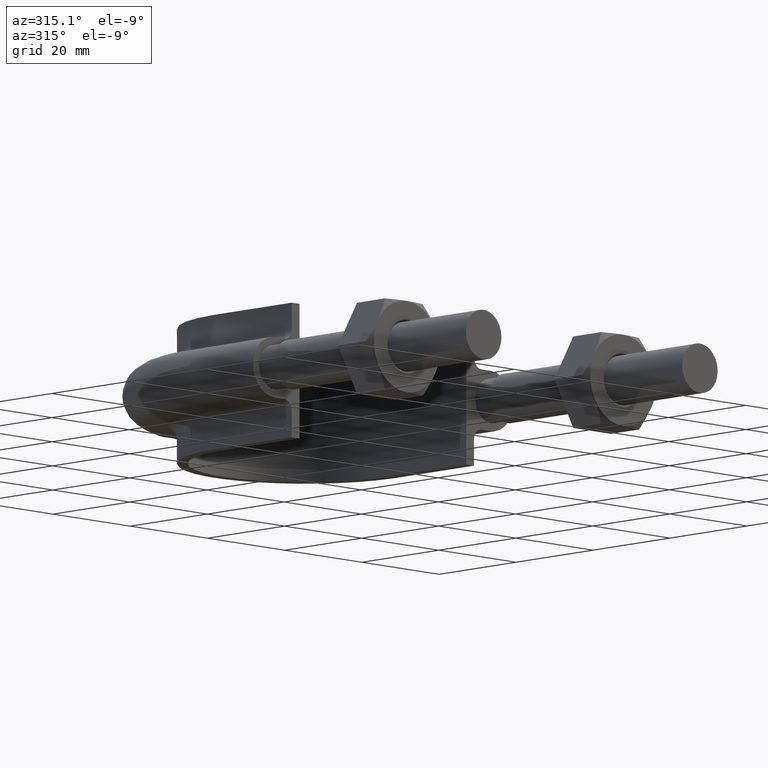
[diagram: clean part render]
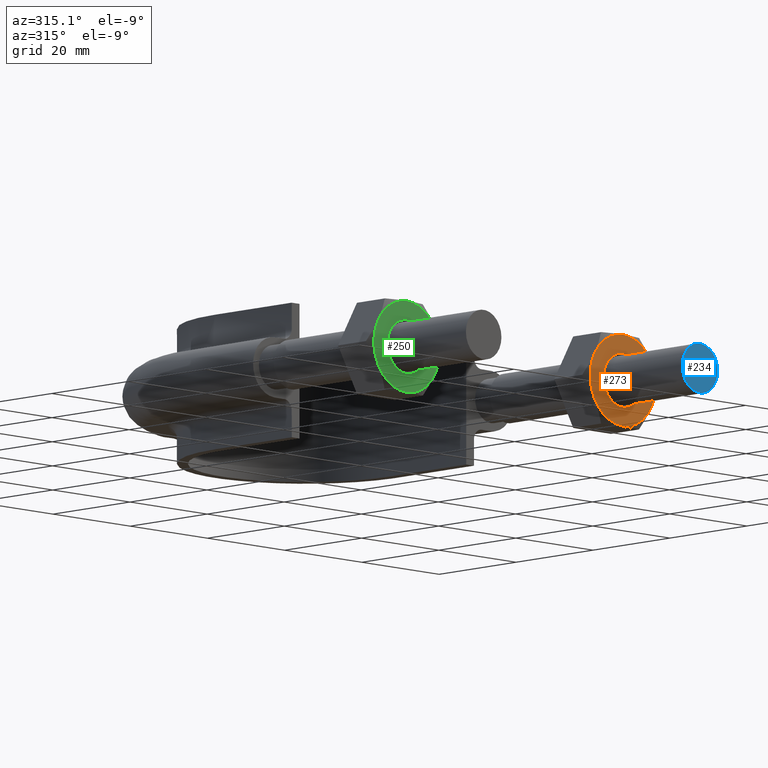
[diagram: same view with three faces highlighted in distinct colors, each labeled with its STEP entity id]
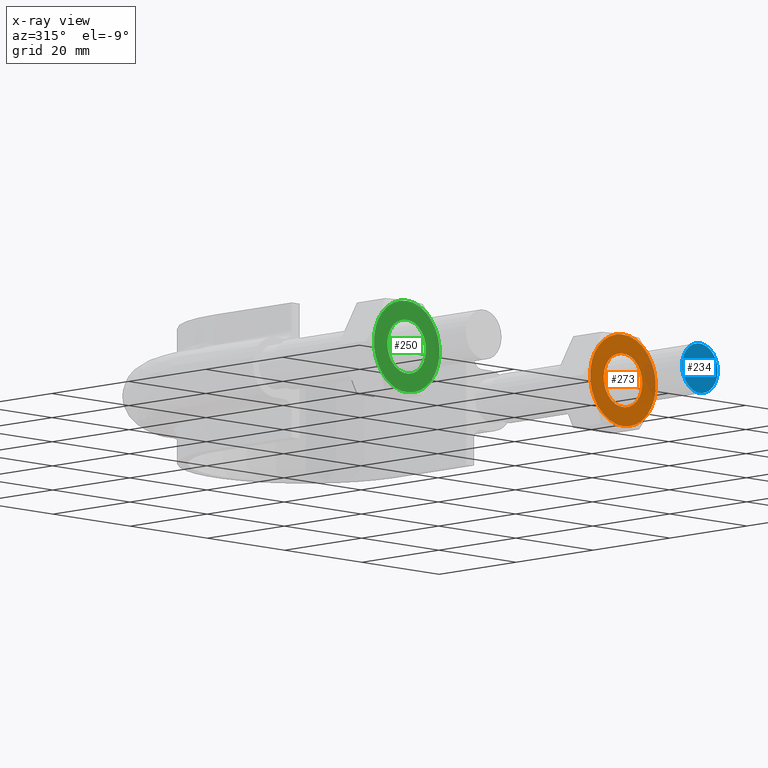
[diagram: x-ray of the same camera — body ghosted, the three highlighted faces saturated]
A machine part, auxiliary view with three faces highlighted in distinct colors.
The next image is the same camera in x-ray (body ghosted, the three faces saturated) — at least one of them is partly hidden behind the body in this view.
Their STEP definitions:

[orange] entity #273 — the highlighted planar face has unit normal (0, 1, 0).
#273 = ADVANCED_FACE( '', ( #419, #420 ), #421, .F. );
#419 = FACE_OUTER_BOUND( '', #1416, .T. );
#420 = FACE_BOUND( '', #1417, .T. );
#421 = PLANE( '', #1418 );
#1416 = EDGE_LOOP( '', ( #1837, #1838, #1839, #1840, #1841, #1842 ) );
#1417 = EDGE_LOOP( '', ( #1843 ) );
#1418 = AXIS2_PLACEMENT_3D( '', #1844, #1845, #1846 );
#1837 = ORIENTED_EDGE( '', *, *, #2107, .F. );
#1838 = ORIENTED_EDGE( '', *, *, #2108, .F. );
#1839 = ORIENTED_EDGE( '', *, *, #2109, .F. );
#1840 = ORIENTED_EDGE( '', *, *, #2110, .F. );
#1841 = ORIENTED_EDGE( '', *, *, #2105, .F. );
#1842 = ORIENTED_EDGE( '', *, *, #2111, .F. );
#1843 = ORIENTED_EDGE( '', *, *, #2112, .T. );
#1844 = CARTESIAN_POINT( '', ( 28.0000000000000, 20.0000000000000, 6.22440467223928E-016 ) );
#1845 = DIRECTION( '', ( 2.44921270764475E-016, 1.00000000000000, 6.12303176911189E-017 ) );
#1846 = DIRECTION( '', ( -0.866025403784439, 1.81492883563643E-016, 0.500000000000000 ) );
#2105 = EDGE_CURVE( '', #2322, #2324, #2325, .T. );
#2107 = EDGE_CURVE( '', #2327, #2328, #2329, .T. );
#2108 = EDGE_CURVE( '', #2330, #2327, #2331, .T. );
#2109 = EDGE_CURVE( '', #2332, #2330, #2333, .T. );
#2110 = EDGE_CURVE( '', #2324, #2332, #2334, .T. );
#2111 = EDGE_CURVE( '', #2328, #2322, #2335, .T. );
#2112 = EDGE_CURVE( '', #2336, #2336, #2337, .T. );
#2322 = VERTEX_POINT( '', #2901 );
#2324 = VERTEX_POINT( '', #2908 );
#2325 = CIRCLE( '', #2909, 8.50000000000000 );
#2327 = VERTEX_POINT( '', #2918 );
#2328 = VERTEX_POINT( '', #2919 );
#2329 = CIRCLE( '', #2920, 8.50000000000000 );
#2330 = VERTEX_POINT( '', #2921 );
#2331 = CIRCLE( '', #2922, 8.50000000000000 );
#2332 = VERTEX_POINT( '', #2923 );
#2333 = CIRCLE( '', #2924, 8.50000000000000 );
#2334 = CIRCLE( '', #2925, 8.50000000000000 );
#2335 = CIRCLE( '', #2926, 8.50000000000000 );
#2336 = VERTEX_POINT( '', #2927 );
#2337 = CIRCLE( '', #2928, 5.00000000000000 );
#2901 = CARTESIAN_POINT( '', ( 35.3612159321677, 20.0000000000000, -4.25000000000000 ) );
#2908 = CARTESIAN_POINT( '', ( 28.0000000000000, 20.0000000000000, -8.50000000000000 ) );
#2909 = AXIS2_PLACEMENT_3D( '', #3223, #3224, #3225 );
#2918 = CARTESIAN_POINT( '', ( 28.0000000000000, 20.0000000000000, 8.50000000000000 ) );
#2919 = CARTESIAN_POINT( '', ( 35.3612159321677, 20.0000000000000, 4.25000000000000 ) );
#2920 = AXIS2_PLACEMENT_3D( '', #3226, #3227, #3228 );
#2921 = CARTESIAN_POINT( '', ( 20.6387840678323, 20.0000000000000, 4.25000000000000 ) );
#2922 = AXIS2_PLACEMENT_3D( '', #3229, #3230, #3231 );
#2923 = CARTESIAN_POINT( '', ( 20.6387840678323, 20.0000000000000, -4.25000000000000 ) );
#2924 = AXIS2_PLACEMENT_3D( '', #3232, #3233, #3234 );
#2925 = AXIS2_PLACEMENT_3D( '', #3235, #3236, #3237 );
#2926 = AXIS2_PLACEMENT_3D( '', #3238, #3239, #3240 );
#2927 = CARTESIAN_POINT( '', ( 23.6698729810778, 20.0000000000000, 2.50000000000000 ) );
#2928 = AXIS2_PLACEMENT_3D( '', #3241, #3242, #3243 );
#3223 = CARTESIAN_POINT( '', ( 28.0000000000000, 20.0000000000000, 6.22440467223928E-016 ) );
#3224 = DIRECTION( '', ( 2.44921270764476E-016, 1.00000000000000, 6.12303176911189E-017 ) );
#3225 = DIRECTION( '', ( -0.866025403784439, 1.81492883563643E-016, 0.500000000000000 ) );
#3226 = CARTESIAN_POINT( '', ( 28.0000000000000, 20.0000000000000, 6.22440467223928E-016 ) );
#3227 = DIRECTION( '', ( 2.44921270764476E-016, 1.00000000000000, 6.12303176911189E-017 ) );
#3228 = DIRECTION( '', ( -0.866025403784439, 1.81492883563643E-016, 0.500000000000000 ) );
#3229 = CARTESIAN_POINT( '', ( 28.0000000000000, 20.0000000000000, 6.22440467223928E-016 ) );
#3230 = DIRECTION( '', ( 2.44921270764476E-016, 1.00000000000000, 6.12303176911189E-017 ) );
#3231 = DIRECTION( '', ( -0.866025403784439, 1.81492883563643E-016, 0.500000000000000 ) );
#3232 = CARTESIAN_POINT( '', ( 28.0000000000000, 20.0000000000000, 6.22440467223928E-016 ) );
#3233 = DIRECTION( '', ( 2.44921270764476E-016, 1.00000000000000, 6.12303176911189E-017 ) );
#3234 = DIRECTION( '', ( -0.866025403784439, 1.81492883563643E-016, 0.500000000000000 ) );
#3235 = CARTESIAN_POINT( '', ( 28.0000000000000, 20.0000000000000, 6.22440467223928E-016 ) );
#3236 = DIRECTION( '', ( 2.44921270764476E-016, 1.00000000000000, 6.12303176911189E-017 ) );
#3237 = DIRECTION( '', ( -0.866025403784439, 1.81492883563643E-016, 0.500000000000000 ) );
#3238 = CARTESIAN_POINT( '', ( 28.0000000000000, 20.0000000000000, 6.22440467223928E-016 ) );
#3239 = DIRECTION( '', ( 2.44921270764476E-016, 1.00000000000000, 6.12303176911189E-017 ) );
#3240 = DIRECTION( '', ( -0.866025403784439, 1.81492883563643E-016, 0.500000000000000 ) );
#3241 = CARTESIAN_POINT( '', ( 28.0000000000000, 20.0000000000000, 6.22440467223928E-016 ) );
#3242 = DIRECTION( '', ( 2.44921270764475E-016, 1.00000000000000, 6.12303176911189E-017 ) );
#3243 = DIRECTION( '', ( -0.866025403784439, 1.81492883563643E-016, 0.500000000000000 ) );

[blue] entity #234 — the highlighted planar face has unit normal (-0, -1, -0).
#234 = ADVANCED_FACE( '', ( #334 ), #335, .T. );
#334 = FACE_OUTER_BOUND( '', #1331, .T. );
#335 = PLANE( '', #1332 );
#1331 = EDGE_LOOP( '', ( #1584 ) );
#1332 = AXIS2_PLACEMENT_3D( '', #1585, #1586, #1587 );
#1584 = ORIENTED_EDGE( '', *, *, #2048, .T. );
#1585 = CARTESIAN_POINT( '', ( 28.0000000000000, -6.85779558140531E-015, -1.83690953073359E-017 ) );
#1586 = DIRECTION( '', ( -2.44921270764475E-016, -1.00000000000000, -6.12303176911188E-017 ) );
#1587 = DIRECTION( '', ( 1.00000000000000, -2.44921270764475E-016, -7.49830360911068E-033 ) );
#2048 = EDGE_CURVE( '', #2227, #2227, #2228, .T. );
#2227 = VERTEX_POINT( '', #2720 );
#2228 = CIRCLE( '', #2721, 4.60000000000000 );
#2720 = CARTESIAN_POINT( '', ( 32.6000000000000, -7.98443342692190E-015, -1.83690953073359E-017 ) );
#2721 = AXIS2_PLACEMENT_3D( '', #3127, #3128, #3129 );
#3127 = CARTESIAN_POINT( '', ( 28.0000000000000, -6.85779558140531E-015, -1.83690953073359E-017 ) );
#3128 = DIRECTION( '', ( -2.44921270764475E-016, -1.00000000000000, -6.12303176911188E-017 ) );
#3129 = DIRECTION( '', ( 1.00000000000000, -2.44921270764475E-016, -7.49830360911068E-033 ) );

[green] entity #250 — the highlighted planar face has unit normal (0, 1, 0).
#250 = ADVANCED_FACE( '', ( #368, #369 ), #370, .F. );
#368 = FACE_OUTER_BOUND( '', #1365, .T. );
#369 = FACE_BOUND( '', #1366, .T. );
#370 = PLANE( '', #1367 );
#1365 = EDGE_LOOP( '', ( #1664, #1665, #1666, #1667, #1668, #1669 ) );
#1366 = EDGE_LOOP( '', ( #1670 ) );
#1367 = AXIS2_PLACEMENT_3D( '', #1671, #1672, #1673 );
#1664 = ORIENTED_EDGE( '', *, *, #2055, .F. );
#1665 = ORIENTED_EDGE( '', *, *, #2056, .F. );
#1666 = ORIENTED_EDGE( '', *, *, #2057, .F. );
#1667 = ORIENTED_EDGE( '', *, *, #2058, .F. );
#1668 = ORIENTED_EDGE( '', *, *, #2053, .F. );
#1669 = ORIENTED_EDGE( '', *, *, #2059, .F. );
#1670 = ORIENTED_EDGE( '', *, *, #2060, .T. );
#1671 = CARTESIAN_POINT( '', ( -28.0000000000000, 20.0000000000000, 6.22440467223928E-016 ) );
#1672 = DIRECTION( '', ( 2.44921270764475E-016, 1.00000000000000, 6.12303176911189E-017 ) );
#1673 = DIRECTION( '', ( -0.866025403784439, 1.81492883563643E-016, 0.500000000000000 ) );
#2053 = EDGE_CURVE( '', #2236, #2238, #2239, .T. );
#2055 = EDGE_CURVE( '', #2241, #2242, #2243, .T. );
#2056 = EDGE_CURVE( '', #2244, #2241, #2245, .T. );
#2057 = EDGE_CURVE( '', #2246, #2244, #2247, .T. );
#2058 = EDGE_CURVE( '', #2238, #2246, #2248, .T. );
#2059 = EDGE_CURVE( '', #2242, #2236, #2249, .T. );
#2060 = EDGE_CURVE( '', #2250, #2250, #2251, .T. );
#2236 = VERTEX_POINT( '', #2729 );
#2238 = VERTEX_POINT( '', #2736 );
#2239 = CIRCLE( '', #2737, 8.50000000000000 );
#2241 = VERTEX_POINT( '', #2746 );
#2242 = VERTEX_POINT( '', #2747 );
#2243 = CIRCLE( '', #2748, 8.50000000000000 );
#2244 = VERTEX_POINT( '', #2749 );
#2245 = CIRCLE( '', #2750, 8.50000000000000 );
#2246 = VERTEX_POINT( '', #2751 );
#2247 = CIRCLE( '', #2752, 8.50000000000000 );
#2248 = CIRCLE( '', #2753, 8.50000000000000 );
#2249 = CIRCLE( '', #2754, 8.50000000000000 );
#2250 = VERTEX_POINT( '', #2755 );
#2251 = CIRCLE( '', #2756, 5.00000000000000 );
#2729 = CARTESIAN_POINT( '', ( -20.6387840678323, 20.0000000000000, -4.25000000000000 ) );
#2736 = CARTESIAN_POINT( '', ( -28.0000000000000, 20.0000000000000, -8.50000000000000 ) );
#2737 = AXIS2_PLACEMENT_3D( '', #3139, #3140, #3141 );
#2746 = CARTESIAN_POINT( '', ( -28.0000000000000, 20.0000000000000, 8.50000000000000 ) );
#2747 = CARTESIAN_POINT( '', ( -20.6387840678323, 20.0000000000000, 4.25000000000000 ) );
#2748 = AXIS2_PLACEMENT_3D( '', #3142, #3143, #3144 );
#2749 = CARTESIAN_POINT( '', ( -35.3612159321677, 20.0000000000000, 4.25000000000000 ) );
#2750 = AXIS2_PLACEMENT_3D( '', #3145, #3146, #3147 );
#2751 = CARTESIAN_POINT( '', ( -35.3612159321677, 20.0000000000000, -4.25000000000000 ) );
#2752 = AXIS2_PLACEMENT_3D( '', #3148, #3149, #3150 );
#2753 = AXIS2_PLACEMENT_3D( '', #3151, #3152, #3153 );
#2754 = AXIS2_PLACEMENT_3D( '', #3154, #3155, #3156 );
#2755 = CARTESIAN_POINT( '', ( -32.3301270189222, 20.0000000000000, 2.50000000000000 ) );
#2756 = AXIS2_PLACEMENT_3D( '', #3157, #3158, #3159 );
#3139 = CARTESIAN_POINT( '', ( -28.0000000000000, 20.0000000000000, 6.22440467223928E-016 ) );
#3140 = DIRECTION( '', ( 2.44921270764476E-016, 1.00000000000000, 6.12303176911189E-017 ) );
#3141 = DIRECTION( '', ( -0.866025403784439, 1.81492883563643E-016, 0.500000000000000 ) );
#3142 = CARTESIAN_POINT( '', ( -28.0000000000000, 20.0000000000000, 6.22440467223928E-016 ) );
#3143 = DIRECTION( '', ( 2.44921270764476E-016, 1.00000000000000, 6.12303176911189E-017 ) );
#3144 = DIRECTION( '', ( -0.866025403784439, 1.81492883563643E-016, 0.500000000000000 ) );
#3145 = CARTESIAN_POINT( '', ( -28.0000000000000, 20.0000000000000, 6.22440467223928E-016 ) );
#3146 = DIRECTION( '', ( 2.44921270764476E-016, 1.00000000000000, 6.12303176911189E-017 ) );
#3147 = DIRECTION( '', ( -0.866025403784439, 1.81492883563643E-016, 0.500000000000000 ) );
#3148 = CARTESIAN_POINT( '', ( -28.0000000000000, 20.0000000000000, 6.22440467223928E-016 ) );
#3149 = DIRECTION( '', ( 2.44921270764476E-016, 1.00000000000000, 6.12303176911189E-017 ) );
#3150 = DIRECTION( '', ( -0.866025403784439, 1.81492883563643E-016, 0.500000000000000 ) );
#3151 = CARTESIAN_POINT( '', ( -28.0000000000000, 20.0000000000000, 6.22440467223928E-016 ) );
#3152 = DIRECTION( '', ( 2.44921270764476E-016, 1.00000000000000, 6.12303176911189E-017 ) );
#3153 = DIRECTION( '', ( -0.866025403784439, 1.81492883563643E-016, 0.500000000000000 ) );
#3154 = CARTESIAN_POINT( '', ( -28.0000000000000, 20.0000000000000, 6.22440467223928E-016 ) );
#3155 = DIRECTION( '', ( 2.44921270764476E-016, 1.00000000000000, 6.12303176911189E-017 ) );
#3156 = DIRECTION( '', ( -0.866025403784439, 1.81492883563643E-016, 0.500000000000000 ) );
#3157 = CARTESIAN_POINT( '', ( -28.0000000000000, 20.0000000000000, 6.22440467223928E-016 ) );
#3158 = DIRECTION( '', ( 2.44921270764475E-016, 1.00000000000000, 6.12303176911189E-017 ) );
#3159 = DIRECTION( '', ( -0.866025403784439, 1.81492883563643E-016, 0.500000000000000 ) );